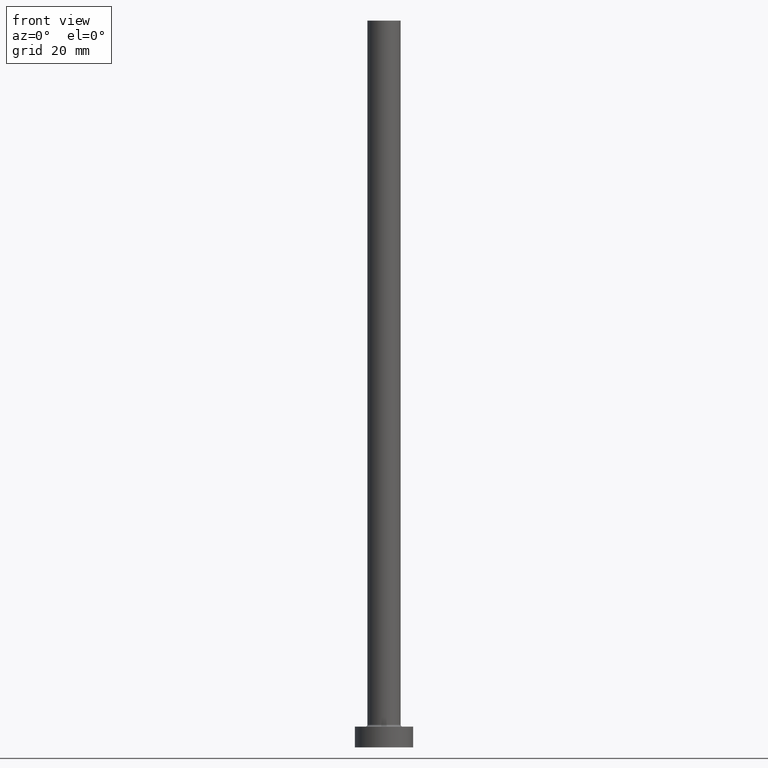
[diagram: clean part render]
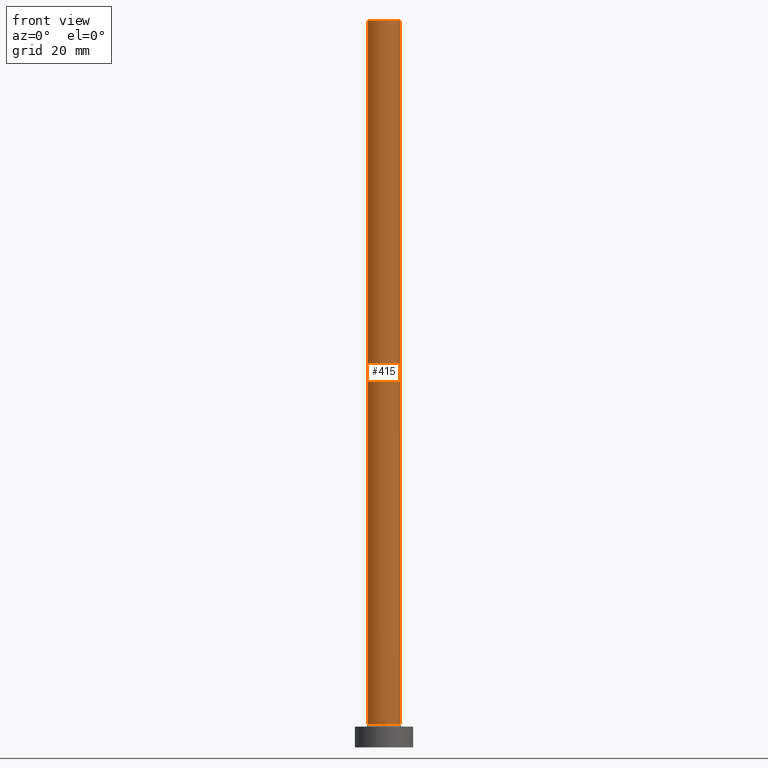
[diagram: same view with one face highlighted and labeled with its STEP entity id]
A machine part, front view. The second image highlights one B-rep face of the part: STEP entity #415.
In plain terms, the highlighted cylindrical surface (edge-blend (fillet) strip) has radius 4 mm, axis along (-0, -0, -1).
Its self-contained STEP definition (entity closure, byte-faithful):
#33 = CYLINDRICAL_SURFACE ( 'NONE', #78, 4.000000000000000000 ) ;
#35 = CIRCLE ( 'NONE', #137, 4.000000000000000000 ) ;
#41 = AXIS2_PLACEMENT_3D ( 'NONE', #323, #250, #248 ) ;
#45 = EDGE_CURVE ( 'NONE', #60, #100, #461, .T. ) ;
#49 = EDGE_LOOP ( 'NONE', ( #297, #230, #219, #216 ) ) ;
#54 = VERTEX_POINT ( 'NONE', #397 ) ;
#60 = VERTEX_POINT ( 'NONE', #173 ) ;
#76 = CARTESIAN_POINT ( 'NONE',  ( -4.000000000000000000, 0.000000000000000000, 175.0000000000000284 ) ) ;
#78 = AXIS2_PLACEMENT_3D ( 'NONE', #423, #130, #97 ) ;
#97 = DIRECTION ( 'NONE',  ( -1.000000000000000000, 0.000000000000000000, 0.000000000000000000 ) ) ;
#100 = VERTEX_POINT ( 'NONE', #430 ) ;
#111 = DIRECTION ( 'NONE',  ( -0.000000000000000000, -0.000000000000000000, -1.000000000000000000 ) ) ;
#112 = EDGE_CURVE ( 'NONE', #451, #54, #35, .T. ) ;
#130 = DIRECTION ( 'NONE',  ( -0.000000000000000000, -0.000000000000000000, -1.000000000000000000 ) ) ;
#137 = AXIS2_PLACEMENT_3D ( 'NONE', #355, #243, #203 ) ;
#164 = EDGE_CURVE ( 'NONE', #54, #100, #391, .T. ) ;
#173 = CARTESIAN_POINT ( 'NONE',  ( -4.000000000000000000, 0.000000000000000000, 5.500000000000005329 ) ) ;
#177 = LINE ( 'NONE', #331, #394 ) ;
#194 = FACE_OUTER_BOUND ( 'NONE', #49, .T. ) ;
#203 = DIRECTION ( 'NONE',  ( 1.000000000000000000, 0.000000000000000000, 0.000000000000000000 ) ) ;
#209 = VECTOR ( 'NONE', #111, 1000.000000000000000 ) ;
#216 = ORIENTED_EDGE ( 'NONE', *, *, #45, .T. ) ;
#219 = ORIENTED_EDGE ( 'NONE', *, *, #326, .T. ) ;
#230 = ORIENTED_EDGE ( 'NONE', *, *, #112, .F. ) ;
#243 = DIRECTION ( 'NONE',  ( 0.000000000000000000, 0.000000000000000000, 1.000000000000000000 ) ) ;
#248 = DIRECTION ( 'NONE',  ( 1.000000000000000000, 0.000000000000000000, 0.000000000000000000 ) ) ;
#250 = DIRECTION ( 'NONE',  ( 0.000000000000000000, 0.000000000000000000, 1.000000000000000000 ) ) ;
#297 = ORIENTED_EDGE ( 'NONE', *, *, #164, .F. ) ;
#323 = CARTESIAN_POINT ( 'NONE',  ( 0.000000000000000000, 0.000000000000000000, 5.500000000000005329 ) ) ;
#326 = EDGE_CURVE ( 'NONE', #451, #60, #177, .T. ) ;
#331 = CARTESIAN_POINT ( 'NONE',  ( -4.000000000000000000, 0.000000000000000000, 175.0000000000000284 ) ) ;
#355 = CARTESIAN_POINT ( 'NONE',  ( 0.000000000000000000, 0.000000000000000000, 175.0000000000000284 ) ) ;
#391 = LINE ( 'NONE', #434, #209 ) ;
#394 = VECTOR ( 'NONE', #436, 1000.000000000000000 ) ;
#397 = CARTESIAN_POINT ( 'NONE',  ( 4.000000000000000000, 4.898587196589412829E-16, 175.0000000000000284 ) ) ;
#415 = ADVANCED_FACE ( 'NONE', ( #194 ), #33, .T. ) ;
#423 = CARTESIAN_POINT ( 'NONE',  ( 0.000000000000000000, 0.000000000000000000, 175.0000000000000284 ) ) ;
#430 = CARTESIAN_POINT ( 'NONE',  ( 4.000000000000000000, 4.898587196589412829E-16, 5.500000000000005329 ) ) ;
#434 = CARTESIAN_POINT ( 'NONE',  ( 4.000000000000000000, 4.898587196589412829E-16, 175.0000000000000284 ) ) ;
#436 = DIRECTION ( 'NONE',  ( -0.000000000000000000, -0.000000000000000000, -1.000000000000000000 ) ) ;
#451 = VERTEX_POINT ( 'NONE', #76 ) ;
#461 = CIRCLE ( 'NONE', #41, 4.000000000000000000 ) ;